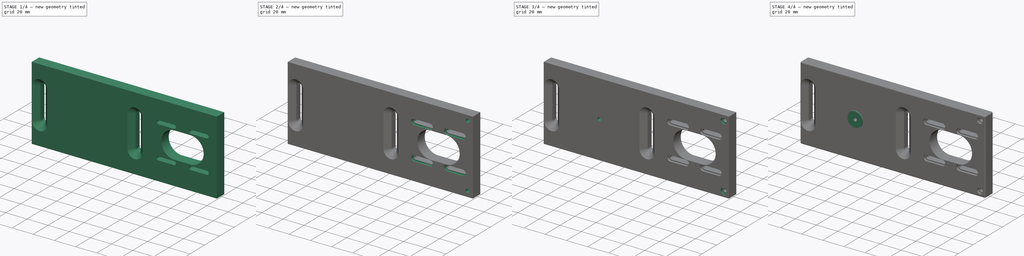
[diagram: build sequence overview — one tinted view per stage of 4, left to right]
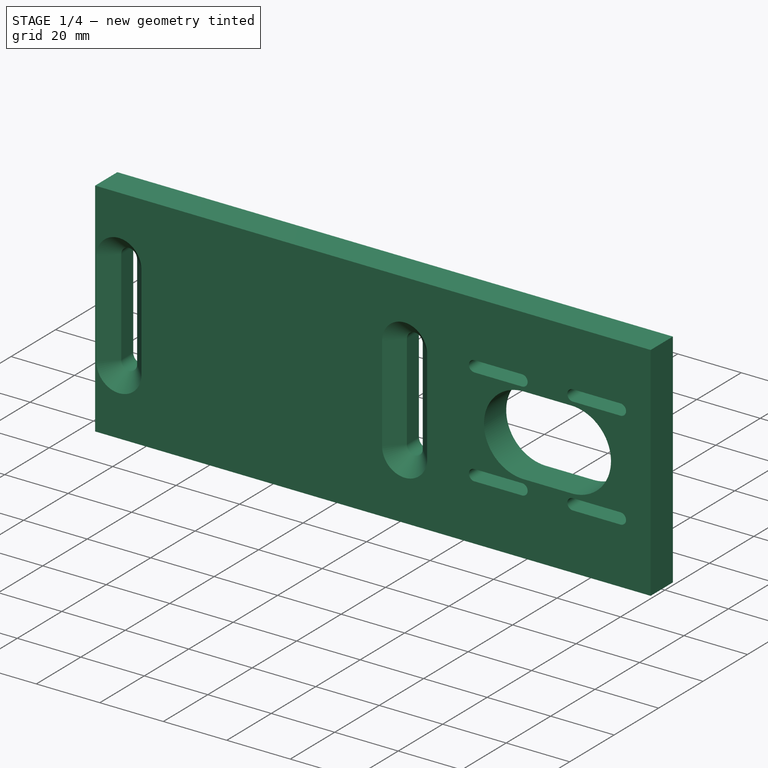
[diagram: stage 1 of 4 — iso view after this stage's code; geometry added in this stage tinted green]
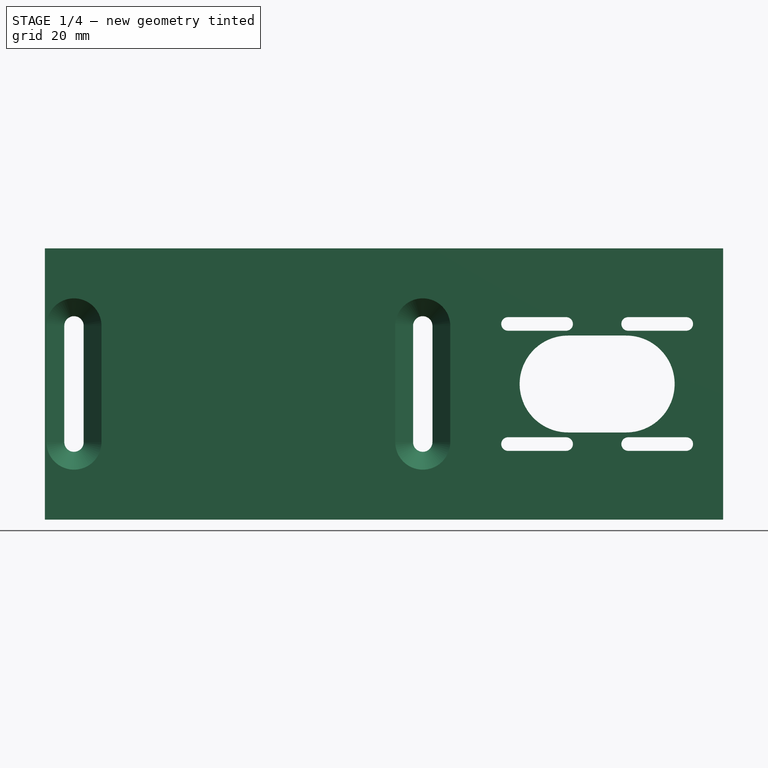
[diagram: stage 1 of 4 — front view after this stage's code; geometry added in this stage tinted green]
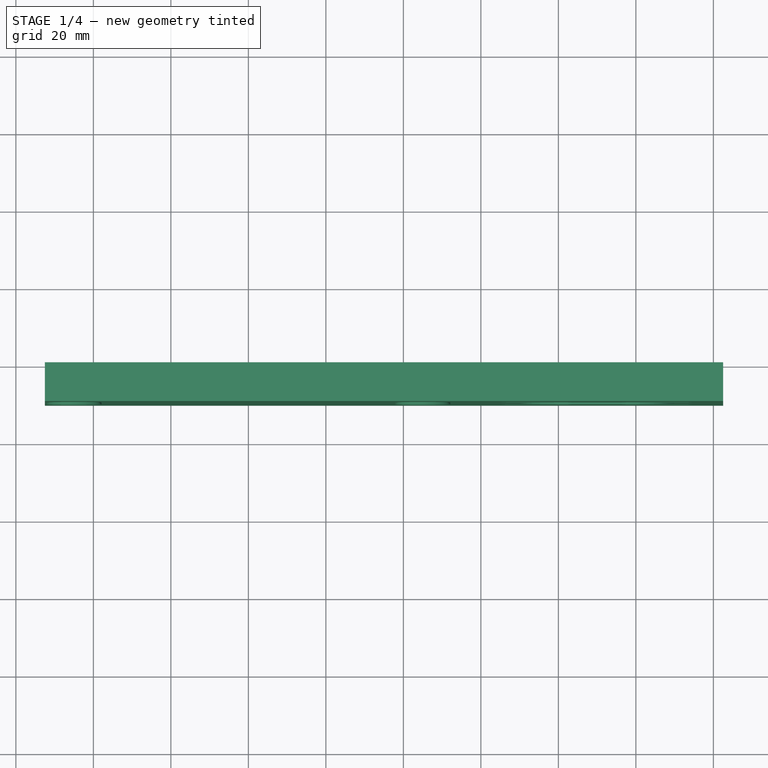
[diagram: stage 1 of 4 — top view after this stage's code; geometry added in this stage tinted green]
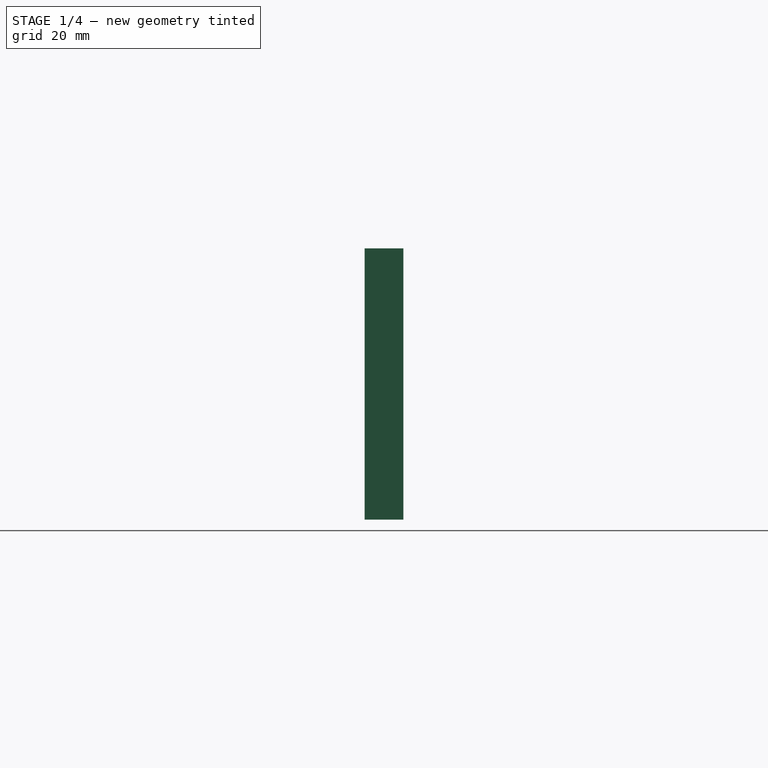
[diagram: stage 1 of 4 — right view after this stage's code; geometry added in this stage tinted green]
FCSTD DOCUMENT  (FreeCAD 0.19R24291 (Git))
Label: wall plate
License: All rights reserved
LicenseURL: http://en.wikipedia.org/wiki/All_rights_reserved
objects: Sketcher::SketchObject×7, PartDesign::Pocket×5, PartDesign::Pad×2, PartDesign::Chamfer×1, PartDesign::Plane×1, PartDesign::Fillet×1, PartDesign::Body×1
note: 27 computed .brp shape members not serialized (recipe doc carries the construction recipe); baked Part::Feature solids carry a one-line shape summary decoded from their .brp

FEATURE [Sketcher::SketchObject] Sketch
  FullyConstrained = false
  MapMode = 5
  Placement = pos=(0,0,0) rot=(1,0,0;1.5708rad)
  Support = -> [XZ_Plane]
  sketch-geometry (57):
    g0: LineSegment StartX=-52.5 StartY=35 StartZ=0 EndX=-52.5 EndY=-35 EndZ=0
    g1: LineSegment StartX=-52.5 StartY=-35 StartZ=0 EndX=52.5 EndY=-35 EndZ=0
    g2: LineSegment StartX=52.5 StartY=35 StartZ=0 EndX=-52.5 EndY=35 EndZ=0
    g3: Circle CenterX=0 CenterY=0 CenterZ=0 NormalX=0 NormalY=0 NormalZ=1 AngleXU=0 Radius=63.0971
    g4: ArcOfCircle CenterX=-45 CenterY=15 CenterZ=0 NormalX=0 NormalY=0 NormalZ=1 AngleXU=0 Radius=2.5 StartAngle=-1.6e-14 EndAngle=3.14159
    g5: ArcOfCircle CenterX=-45 CenterY=-15 CenterZ=0 NormalX=0 NormalY=0 NormalZ=1 AngleXU=0 Radius=2.5 StartAngle=3.14159 EndAngle=6.28319
    g6: LineSegment StartX=-47.5 StartY=15 StartZ=0 EndX=-47.5 EndY=-15 EndZ=0
    g7: LineSegment StartX=-42.5 StartY=15 StartZ=0 EndX=-42.5 EndY=-15 EndZ=0
    g8: LineSegment StartX=-45 StartY=15 StartZ=0 EndX=-45 EndY=0 EndZ=0
    g9: LineSegment StartX=-45 StartY=0 StartZ=0 EndX=-45 EndY=-15 EndZ=0
    g10: ArcOfCircle CenterX=45 CenterY=15 CenterZ=0 NormalX=0 NormalY=0 NormalZ=1 AngleXU=0 Radius=2.5 StartAngle=-1.972e-13 EndAngle=3.14159
    g11: ArcOfCircle CenterX=45 CenterY=-15 CenterZ=0 NormalX=0 NormalY=0 NormalZ=1 AngleXU=0 Radius=2.5 StartAngle=3.14159 EndAngle=6.28319
    g12: LineSegment StartX=47.5 StartY=15 StartZ=0 EndX=47.5 EndY=-15 EndZ=0
    g13: LineSegment StartX=42.5 StartY=15 StartZ=0 EndX=42.5 EndY=-15 EndZ=0
    g14: LineSegment StartX=45 StartY=15 StartZ=0 EndX=45 EndY=0 EndZ=0
    g15: LineSegment StartX=45 StartY=0 StartZ=0 EndX=45 EndY=-15 EndZ=0
    g16: LineSegment StartX=52.5 StartY=35 StartZ=0 EndX=122.5 EndY=35 EndZ=0
    g17: LineSegment StartX=122.5 StartY=35 StartZ=0 EndX=122.5 EndY=-35 EndZ=0
    g18: LineSegment StartX=122.5 StartY=-35 StartZ=0 EndX=52.5 EndY=-35 EndZ=0
    g19: LineSegment StartX=0 StartY=0 StartZ=0 EndX=90 EndY=0 EndZ=0
    g20: LineSegment StartX=105.5 StartY=15.5 StartZ=0 EndX=74.5 EndY=15.5 EndZ=0
    g21: LineSegment StartX=74.5 StartY=15.5 StartZ=0 EndX=74.5 EndY=-15.5 EndZ=0
    g22: LineSegment StartX=74.5 StartY=-15.5 StartZ=0 EndX=105.5 EndY=-15.5 EndZ=0
    g23: LineSegment StartX=105.5 StartY=-15.5 StartZ=0 EndX=105.5 EndY=15.5 EndZ=0
    g24: Circle CenterX=90 CenterY=0 CenterZ=0 NormalX=0 NormalY=0 NormalZ=1 AngleXU=0 Radius=21.9203
    g25: ArcOfCircle CenterX=82.5 CenterY=2e-16 CenterZ=0 NormalX=0 NormalY=0 NormalZ=1 AngleXU=0 Radius=12.5 StartAngle=1.5708 EndAngle=4.71239
    g26: ArcOfCircle CenterX=97.5 CenterY=0 CenterZ=0 NormalX=0 NormalY=0 NormalZ=1 AngleXU=0 Radius=12.5 StartAngle=4.71239 EndAngle=7.85398
    g27: LineSegment StartX=82.5 StartY=-12.5 StartZ=0 EndX=97.5 EndY=-12.5 EndZ=0
    g28: LineSegment StartX=82.5 StartY=12.5 StartZ=0 EndX=97.5 EndY=12.5 EndZ=0
    g29: LineSegment StartX=97.5 StartY=0 StartZ=0 EndX=90 EndY=0 EndZ=0
    g30: LineSegment StartX=90 StartY=0 StartZ=0 EndX=82.5 EndY=2e-16 EndZ=0
    g31: ArcOfCircle CenterX=67 CenterY=15.5 CenterZ=0 NormalX=0 NormalY=0 NormalZ=1 AngleXU=0 Radius=1.75 StartAngle=1.5708 EndAngle=4.71239
    g32: ArcOfCircle CenterX=82 CenterY=15.5 CenterZ=0 NormalX=0 NormalY=0 NormalZ=1 AngleXU=0 Radius=1.75 StartAngle=4.71239 EndAngle=7.85398
    g33: LineSegment StartX=67 StartY=13.75 StartZ=0 EndX=82 EndY=13.75 EndZ=0
    g34: LineSegment StartX=67 StartY=17.25 StartZ=0 EndX=82 EndY=17.25 EndZ=0
    g35: LineSegment StartX=67 StartY=15.5 StartZ=0 EndX=74.5 EndY=15.5 EndZ=0
    g36: LineSegment StartX=74.5 StartY=15.5 StartZ=0 EndX=82 EndY=15.5 EndZ=0
    g37: LineSegment StartX=90 StartY=0 StartZ=0 EndX=90 EndY=-4.86935 EndZ=0
    g38: ArcOfCircle CenterX=113 CenterY=15.5 CenterZ=0 NormalX=0 NormalY=0 NormalZ=1 AngleXU=0 Radius=1.75 StartAngle=4.71239 EndAngle=7.85398
    g39: ArcOfCircle CenterX=98 CenterY=15.5 CenterZ=0 NormalX=0 NormalY=0 NormalZ=1 AngleXU=0 Radius=1.75 StartAngle=1.5708 EndAngle=4.71239
    g40: LineSegment StartX=113 StartY=13.75 StartZ=0 EndX=98 EndY=13.75 EndZ=0
    g41: LineSegment StartX=113 StartY=17.25 StartZ=0 EndX=98 EndY=17.25 EndZ=0
    g42: LineSegment StartX=113 StartY=15.5 StartZ=0 EndX=105.5 EndY=15.5 EndZ=0
    g43: LineSegment StartX=105.5 StartY=15.5 StartZ=0 EndX=98 EndY=15.5 EndZ=0
    g44: LineSegment StartX=105.5 StartY=-15.5 StartZ=0 EndX=74.5 EndY=-15.5 EndZ=0
    g45: ArcOfCircle CenterX=67 CenterY=-15.5 CenterZ=0 NormalX=0 NormalY=0 NormalZ=1 AngleXU=0 Radius=1.75 StartAngle=1.5708 EndAngle=4.71239
    g46: ArcOfCircle CenterX=82 CenterY=-15.5 CenterZ=0 NormalX=0 NormalY=0 NormalZ=1 AngleXU=0 Radius=1.75 StartAngle=4.71239 EndAngle=7.85398
    g47: LineSegment StartX=67 StartY=-13.75 StartZ=0 EndX=82 EndY=-13.75 EndZ=0
    g48: LineSegment StartX=67 StartY=-17.25 StartZ=0 EndX=82 EndY=-17.25 EndZ=0
    g49: LineSegment StartX=67 StartY=-15.5 StartZ=0 EndX=74.5 EndY=-15.5 EndZ=0
    g50: LineSegment StartX=74.5 StartY=-15.5 StartZ=0 EndX=82 EndY=-15.5 EndZ=0
    g51: ArcOfCircle CenterX=113 CenterY=-15.5 CenterZ=0 NormalX=0 NormalY=0 NormalZ=1 AngleXU=0 Radius=1.75 StartAngle=4.71239 EndAngle=7.85398
    g52: ArcOfCircle CenterX=98 CenterY=-15.5 CenterZ=0 NormalX=0 NormalY=0 NormalZ=1 AngleXU=0 Radius=1.75 StartAngle=1.5708 EndAngle=4.71239
    g53: LineSegment StartX=113 StartY=-13.75 StartZ=0 EndX=98 EndY=-13.75 EndZ=0
    g54: LineSegment StartX=113 StartY=-17.25 StartZ=0 EndX=98 EndY=-17.25 EndZ=0
    g55: LineSegment StartX=113 StartY=-15.5 StartZ=0 EndX=105.5 EndY=-15.5 EndZ=0
    g56: LineSegment StartX=105.5 StartY=-15.5 StartZ=0 EndX=98 EndY=-15.5 EndZ=0
  constraints (129):
    c: Coincident(g0,g1)
    c: Coincident(g2,g0)
    c: PointOnObject(g0,g3)
    c: PointOnObject(g1,g3)
    c: PointOnObject(g2,g3)
    c: PointOnObject(g2,g3)
    c: Coincident(g3,g-1)
    c: Horizontal(g2)
    c: Equal(g2,g1)
    c: DistanceY(g1,g2) = 70
    c: DistanceX(g2,g2) = 105
    c: Tangent(g4,g7) = 1.5708
    c: Tangent(g4,g6) = -1.5708
    c: Tangent(g6,g5) = -1.5708
    c: Tangent(g7,g5) = 1.5708
    c: Vertical(g6)
    c: Equal(g4,g5)
    c: Coincident(g8,g4)
    c: PointOnObject(g8,g-1)
    c: Coincident(g9,g8)
    c: Coincident(g9,g5)
    c: Equal(g8,g9)
    c: Vertical(g8)
    c: DistanceY(g8,g8) = 15
    c: DistanceX(g4,g4) = 5
    c: DistanceX(g8,g-1) = 45
    c: Tangent(g10,g13) = -1.5708
    c: Tangent(g10,g12) = 1.5708
    c: Tangent(g12,g11) = 1.5708
    c: Tangent(g13,g11) = -1.5708
    c: Vertical(g12)
    c: Equal(g10,g11)
    c: Coincident(g14,g10)
    c: Coincident(g15,g14)
    c: Coincident(g15,g11)
    c: Equal(g14,g15)
    c: Vertical(g14)
    c: Coincident(g16,g17)
    c: Coincident(g17,g18)
    c: Horizontal(g16)
    c: Horizontal(g18)
    c: Vertical(g17)
    c: PointOnObject(g18,g1)
    c: Coincident(g19,g-1)
    c: PointOnObject(g19,g-1)
    c: DistanceX(g19,g19) = 90
    c: Vertical(g0)
    c: Coincident(g16,g2)
    c: Coincident(g20,g21)
    c: Equal(g20,g21)
    c: Equal(g20,g22)
    c: Equal(g20,g23)
    c: PointOnObject(g20,g24)
    c: PointOnObject(g21,g24)
    c: PointOnObject(g22,g24)
    c: PointOnObject(g23,g24)
    c: Coincident(g24,g19)
    c: Horizontal(g20)
    c: DistanceY(g23,g23) = 31
    c: Distance(g16,g2) = 70
    c: Tangent(g25,g28) = 1.5708
    c: Tangent(g25,g27) = -1.5708
    c: Tangent(g27,g26) = -1.5708
    c: Tangent(g28,g26) = 1.5708
    c: Horizontal(g27)
    c: Equal(g25,g26)
    c: Coincident(g29,g26)
    c: Coincident(g29,g19)
    c: Coincident(g30,g19)
    c: Coincident(g30,g25)
    c: Equal(g29,g30)
    c: Horizontal(g29)
    c: Distance(g26,g25) = 15
    c: Distance(g26,g26) = 25
    c: Tangent(g31,g34) = 1.5708
    c: Tangent(g31,g33) = -1.5708
    c: Tangent(g33,g32) = -1.5708
    c: Tangent(g34,g32) = 1.5708
    c: Horizontal(g33)
    c: Equal(g31,g32)
    c: Coincident(g35,g31)
    c: Coincident(g35,g20)
    c: Coincident(g36,g20)
    c: Coincident(g36,g32)
    c: Equal(g36,g35)
    c: Horizontal(g36)
    c: Distance(g32,g31) = 15
    c: Distance(g32,g32) = 3.5
    c: Coincident(g37,g19)
    c: Vertical(g37)
    c: Tangent(g38,g41) = -1.5708
    c: Tangent(g38,g40) = 1.5708
    c: Tangent(g40,g39) = 1.5708
    c: Tangent(g41,g39) = -1.5708
    c: Horizontal(g40)
    c: Equal(g38,g39)
    c: Coincident(g42,g38)
    c: Coincident(g43,g39)
    c: Equal(g43,g42)
    c: Horizontal(g43)
    c: Distance(g39,g38) = 15
    c: Distance(g39,g39) = 3.5
    c: Horizontal(g44)
    c: Tangent(g45,g48) = -1.5708
    c: Tangent(g45,g47) = 1.5708
    c: Tangent(g47,g46) = 1.5708
    c: Tangent(g48,g46) = -1.5708
    c: Horizontal(g47)
    c: Equal(g45,g46)
    c: Coincident(g49,g45)
    c: Coincident(g49,g44)
    c: Coincident(g50,g44)
    c: Coincident(g50,g46)
    c: Equal(g50,g49)
    c: Horizontal(g50)
    c: Distance(g46,g45) = 15
    c: Distance(g46,g46) = 3.5
    c: Tangent(g51,g54) = 1.5708
    c: Tangent(g51,g53) = -1.5708
    c: Tangent(g53,g52) = -1.5708
    c: Tangent(g54,g52) = 1.5708
    c: Horizontal(g53)
    c: Equal(g51,g52)
    c: Coincident(g55,g51)
    c: Coincident(g56,g52)
    c: Equal(g56,g55)
    c: Horizontal(g56)
    c: Distance(g52,g51) = 15
    c: Distance(g52,g52) = 3.5
FEATURE [PartDesign::Pad] Pad  label="main body"
  Direction = (1,1,1)
  Length = 10
  Length2 = 100
  Placement = pos=(0,0,0) rot=(1,0,0;1.5708rad)
  Profile = -> Sketch
  Type = 0
FEATURE [PartDesign::Chamfer] Chamfer
  Angle = 45
  Base = -> Pad [Edge42,Edge40,Edge34,Edge37,Edge54,Edge52,Edge46,Edge49]
  BaseFeature = -> Pad
  ChamferType = 2
  FlipDirection = false
  Placement = pos=(0,0,0) rot=(1,0,0;1.5708rad)
  Size = 4.6
  Size2 = 1
  SupportTransform = false
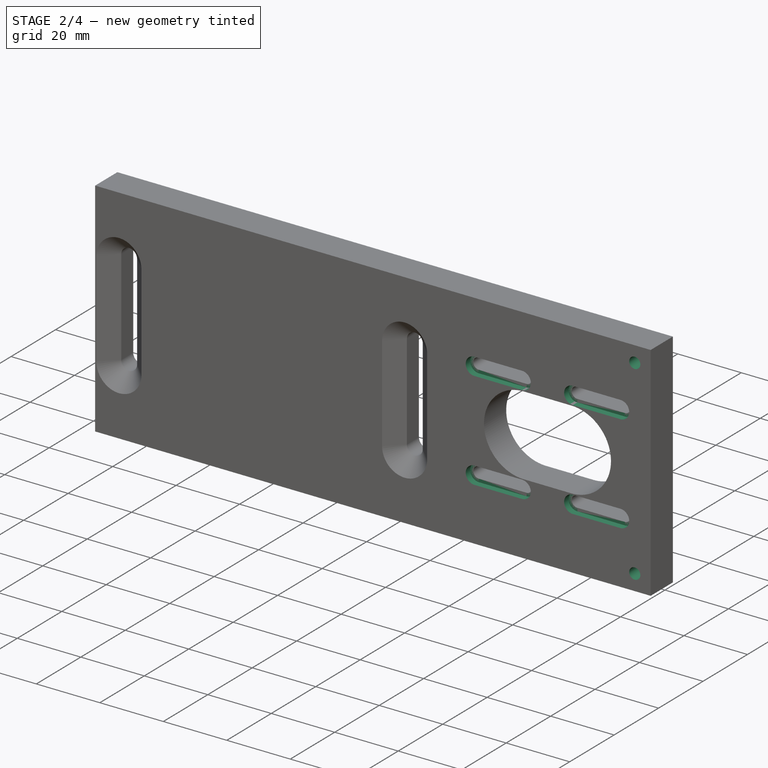
[diagram: stage 2 of 4 — iso view after this stage's code; geometry added in this stage tinted green]
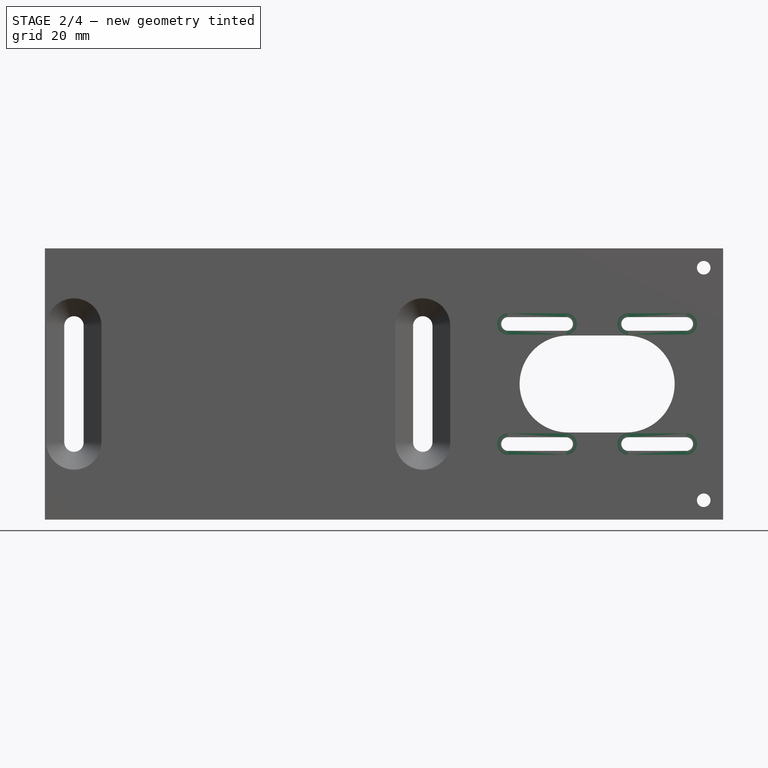
[diagram: stage 2 of 4 — front view after this stage's code; geometry added in this stage tinted green]
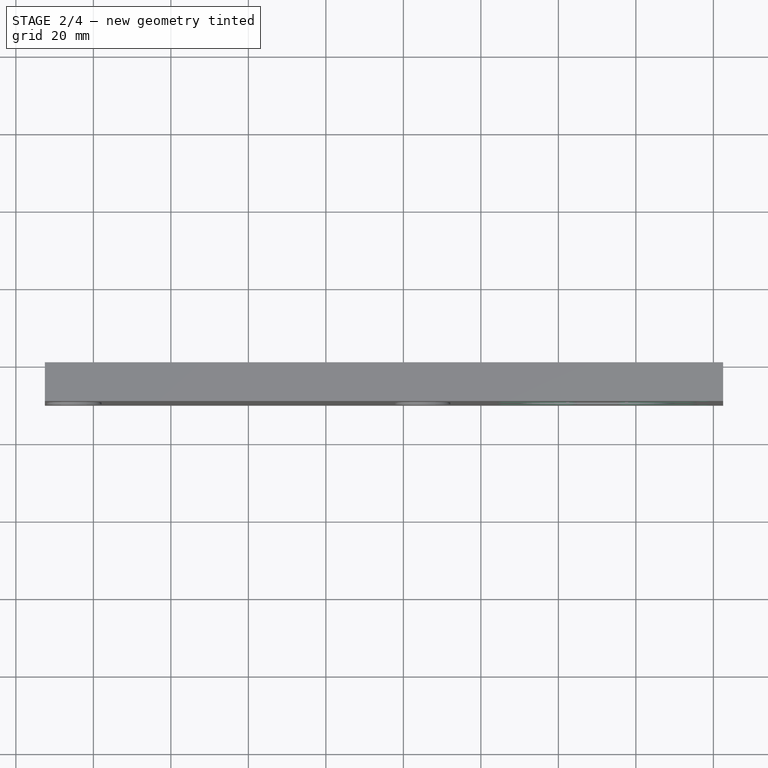
[diagram: stage 2 of 4 — top view after this stage's code; geometry added in this stage tinted green]
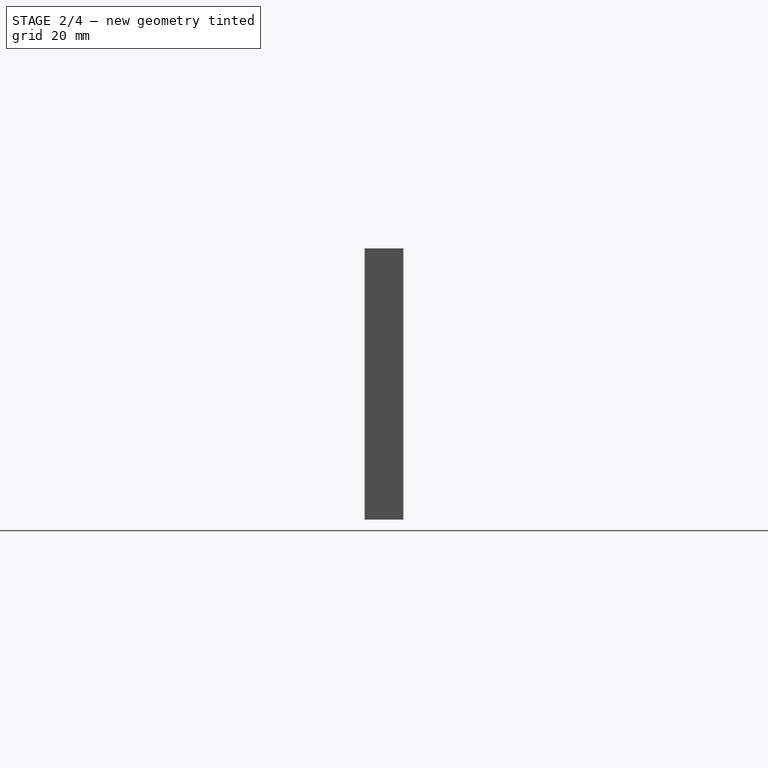
[diagram: stage 2 of 4 — right view after this stage's code; geometry added in this stage tinted green]
FEATURE [Sketcher::SketchObject] Sketch002
  ExternalGeometry = -> [Chamfer]
  FullyConstrained = false
  MapMode = 5
  Placement = pos=(0,-10,-2.2e-15) rot=(1,0,0;1.5708rad)
  Support = -> [Chamfer]
  sketch-geometry (20):
    g0: LineSegment StartX=82.5 StartY=2e-16 StartZ=0 EndX=97.5 EndY=0 EndZ=0
    g1: ArcOfCircle CenterX=67 CenterY=15.5 CenterZ=0 NormalX=0 NormalY=0 NormalZ=1 AngleXU=0 Radius=2.75 StartAngle=1.5708 EndAngle=4.71239
    g2: ArcOfCircle CenterX=82 CenterY=15.5 CenterZ=0 NormalX=0 NormalY=0 NormalZ=1 AngleXU=0 Radius=2.75 StartAngle=4.71239 EndAngle=7.85398
    g3: LineSegment StartX=67 StartY=12.75 StartZ=0 EndX=82 EndY=12.75 EndZ=0
    g4: LineSegment StartX=67 StartY=18.25 StartZ=0 EndX=82 EndY=18.25 EndZ=0
    g5: LineSegment StartX=90 StartY=1e-16 StartZ=0 EndX=90 EndY=-5 EndZ=0
    g6: LineSegment StartX=82.5 StartY=2e-16 StartZ=0 EndX=90 EndY=1e-16 EndZ=0
    g7: LineSegment StartX=97.5 StartY=0 StartZ=0 EndX=90 EndY=1e-16 EndZ=0
    g8: ArcOfCircle CenterX=67 CenterY=-15.5 CenterZ=0 NormalX=0 NormalY=0 NormalZ=1 AngleXU=0 Radius=2.75 StartAngle=1.5708 EndAngle=4.71239
    g9: ArcOfCircle CenterX=82 CenterY=-15.5 CenterZ=0 NormalX=0 NormalY=0 NormalZ=1 AngleXU=0 Radius=2.75 StartAngle=4.71239 EndAngle=7.85398
    g10: LineSegment StartX=67 StartY=-12.75 StartZ=0 EndX=82 EndY=-12.75 EndZ=0
    g11: LineSegment StartX=67 StartY=-18.25 StartZ=0 EndX=82 EndY=-18.25 EndZ=0
    g12: ArcOfCircle CenterX=113 CenterY=15.5 CenterZ=0 NormalX=0 NormalY=0 NormalZ=1 AngleXU=0 Radius=2.75 StartAngle=4.71239 EndAngle=7.85398
    g13: ArcOfCircle CenterX=98 CenterY=15.5 CenterZ=0 NormalX=0 NormalY=0 NormalZ=1 AngleXU=0 Radius=2.75 StartAngle=1.5708 EndAngle=4.71239
    g14: LineSegment StartX=113 StartY=12.75 StartZ=0 EndX=98 EndY=12.75 EndZ=0
    g15: LineSegment StartX=113 StartY=18.25 StartZ=0 EndX=98 EndY=18.25 EndZ=0
    g16: ArcOfCircle CenterX=113 CenterY=-15.5 CenterZ=0 NormalX=0 NormalY=0 NormalZ=1 AngleXU=0 Radius=2.75 StartAngle=4.71239 EndAngle=7.85398
    g17: ArcOfCircle CenterX=98 CenterY=-15.5 CenterZ=0 NormalX=0 NormalY=0 NormalZ=1 AngleXU=0 Radius=2.75 StartAngle=1.5708 EndAngle=4.71239
    g18: LineSegment StartX=113 StartY=-12.75 StartZ=0 EndX=98 EndY=-12.75 EndZ=0
    g19: LineSegment StartX=113 StartY=-18.25 StartZ=0 EndX=98 EndY=-18.25 EndZ=0
  constraints (32):
    c: Coincident(g0,g-5)
    c: Tangent(g1,g4) = 1.5708
    c: Tangent(g1,g3) = -1.5708
    c: Tangent(g3,g2) = -1.5708
    c: Tangent(g4,g2) = 1.5708
    c: Horizontal(g3)
    c: Coincident(g1,g-3)
    c: Coincident(g2,g-4)
    c: Distance(g2,g2) = 5.5
    c: Vertical(g5)
    c: Coincident(g6,g0)
    c: Coincident(g6,g5)
    c: Coincident(g7,g0)
    c: Coincident(g7,g5)
    c: Symmetric(g0,g0,g5)
    c: DistanceY(g5,g5) = 5
    c: Tangent(g8,g11) = -1.5708
    c: Tangent(g8,g10) = 1.5708
    c: Tangent(g10,g9) = 1.5708
    c: Tangent(g11,g9) = -1.5708
    c: Distance(g9,g9) = 5.5
    c: Tangent(g12,g15) = -1.5708
    c: Tangent(g12,g14) = 1.5708
    c: Tangent(g14,g13) = 1.5708
    c: Tangent(g15,g13) = -1.5708
    c: Horizontal(g14)
    c: Distance(g13,g13) = 5.5
    c: Tangent(g16,g19) = 1.5708
    c: Tangent(g16,g18) = -1.5708
    c: Tangent(g18,g17) = -1.5708
    c: Tangent(g19,g17) = 1.5708
    c: Distance(g17,g17) = 5.5
FEATURE [PartDesign::Pocket] Pocket  label="stepper slider counter sink"
  BaseFeature = -> Chamfer
  Length = 2
  Length2 = 100
  Placement = pos=(0,0,0) rot=(1,0,0;1.5708rad)
  Profile = -> Sketch002
  Type = 0
FEATURE [Sketcher::SketchObject] Sketch003
  ExternalGeometry = -> [Pocket]
  FullyConstrained = true
  MapMode = 5
  Placement = pos=(0,-10,-2.2e-15) rot=(1,0,0;1.5708rad)
  Support = -> [Pocket]
  sketch-geometry (10):
    g0: LineSegment StartX=122.5 StartY=35 StartZ=0 EndX=117.5 EndY=35 EndZ=0
    g1: LineSegment StartX=117.5 StartY=35 StartZ=0 EndX=117.5 EndY=30 EndZ=0
    g2: LineSegment StartX=117.5 StartY=30 StartZ=0 EndX=122.5 EndY=30 EndZ=0
    g3: LineSegment StartX=122.5 StartY=30 StartZ=0 EndX=122.5 EndY=35 EndZ=0
    g4: LineSegment StartX=122.5 StartY=-35 StartZ=0 EndX=117.5 EndY=-35 EndZ=0
    g5: LineSegment StartX=117.5 StartY=-35 StartZ=0 EndX=117.5 EndY=-30 EndZ=0
    g6: LineSegment StartX=117.5 StartY=-30 StartZ=0 EndX=122.5 EndY=-30 EndZ=0
    g7: LineSegment StartX=122.5 StartY=-30 StartZ=0 EndX=122.5 EndY=-35 EndZ=0
    g8: Circle CenterX=117.5 CenterY=30 CenterZ=0 NormalX=0 NormalY=0 NormalZ=1 AngleXU=0 Radius=1.75
    g9: Circle CenterX=117.5 CenterY=-30 CenterZ=0 NormalX=0 NormalY=0 NormalZ=1 AngleXU=0 Radius=1.75
  constraints (26):
    c: Coincident(g0,g1)
    c: Coincident(g1,g2)
    c: Coincident(g2,g3)
    c: Coincident(g3,g0)
    c: Horizontal(g0)
    c: Horizontal(g2)
    c: Vertical(g1)
    c: Vertical(g3)
    c: Coincident(g0,g-3)
    c: Coincident(g4,g5)
    c: Coincident(g5,g6)
    c: Coincident(g6,g7)
    c: Coincident(g7,g4)
    c: Horizontal(g4)
    c: Horizontal(g6)
    c: Vertical(g5)
    c: Vertical(g7)
    c: Coincident(g4,g-4)
    c: Equal(g0,g1)
    c: Equal(g4,g7)
    c: DistanceY(g7,g7) = 5
    c: DistanceY(g3,g3) = 5
    c: Coincident(g8,g1)
    c: Diameter(g8) = 3.5
    c: Coincident(g9,g5)
    c: Diameter(g9) = 3.5
FEATURE [PartDesign::Pocket] Pocket001  label="case holes"
  BaseFeature = -> Pocket
  Length = 5
  Length2 = 100
  Placement = pos=(0,0,0) rot=(1,0,0;1.5708rad)
  Profile = -> Sketch003
  Type = 1
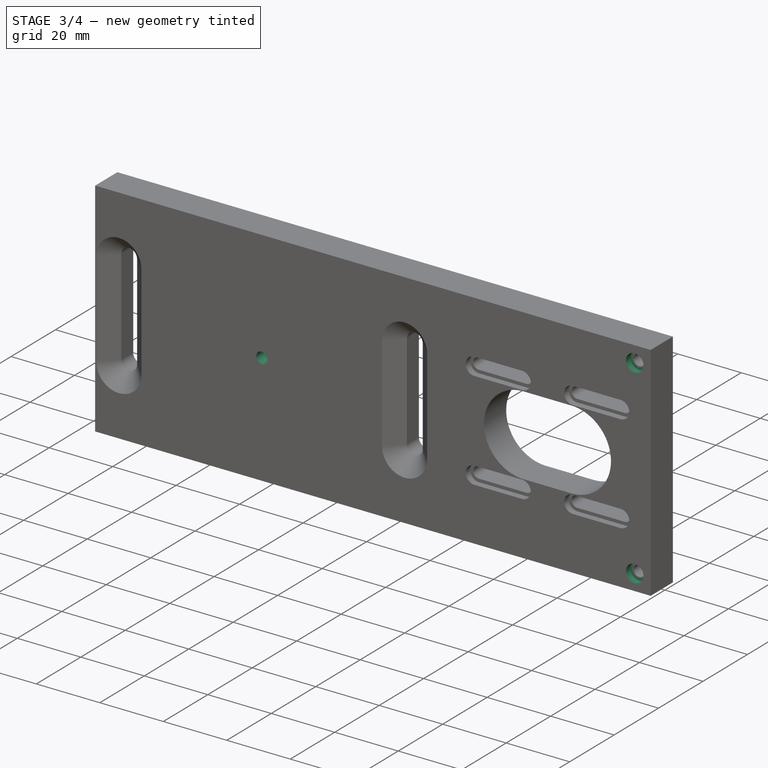
[diagram: stage 3 of 4 — iso view after this stage's code; geometry added in this stage tinted green]
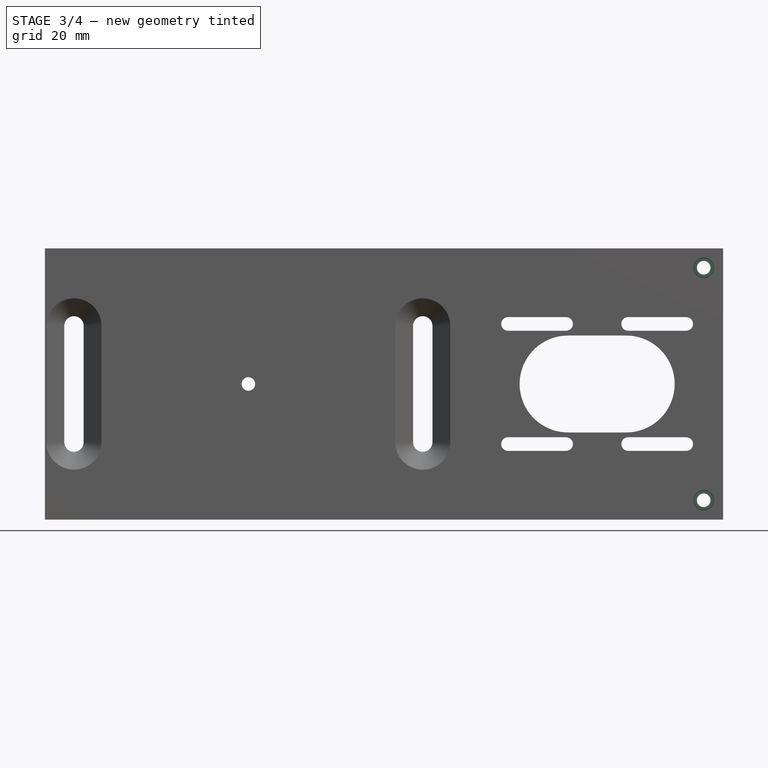
[diagram: stage 3 of 4 — front view after this stage's code; geometry added in this stage tinted green]
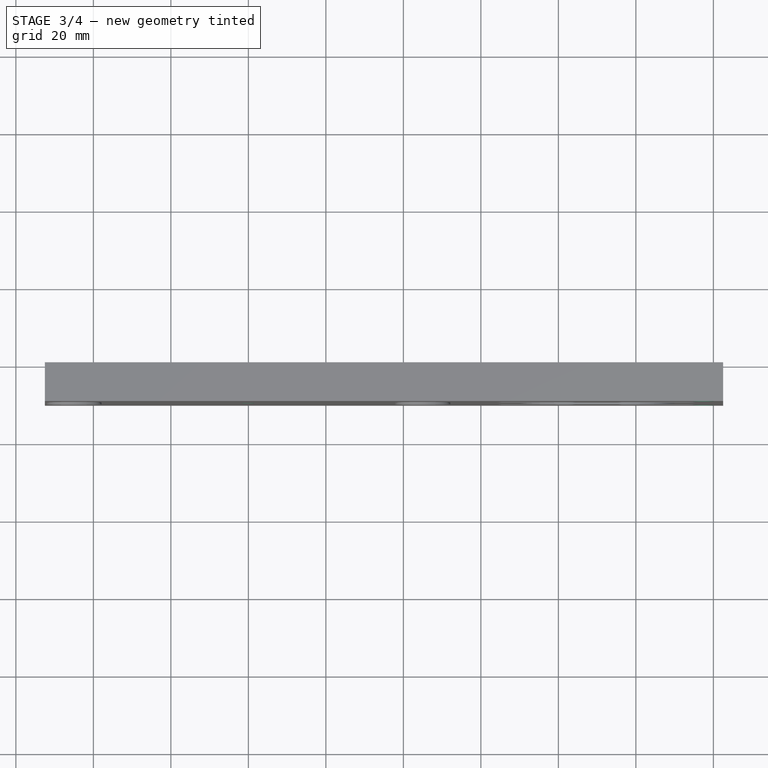
[diagram: stage 3 of 4 — top view after this stage's code; geometry added in this stage tinted green]
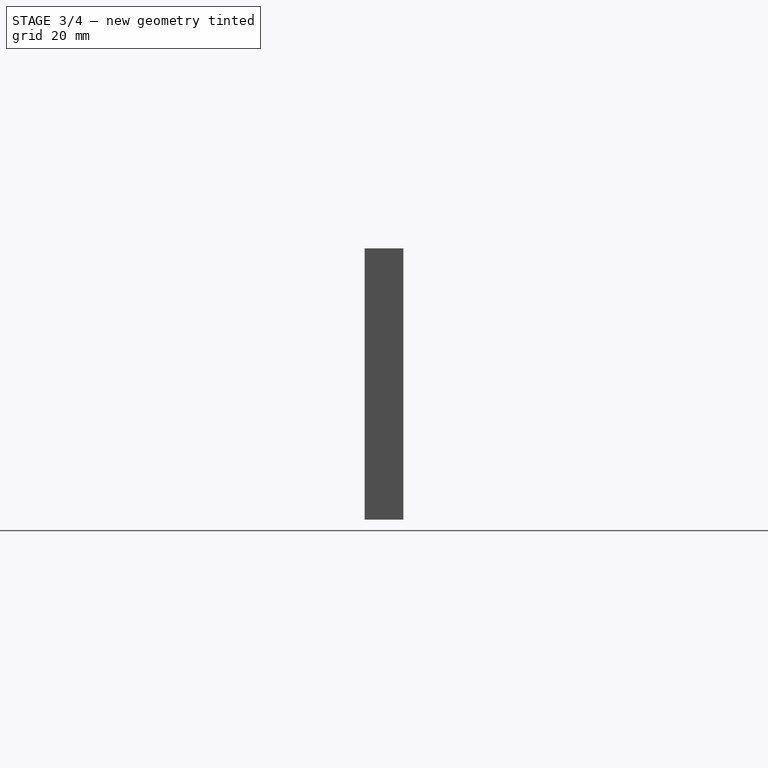
[diagram: stage 3 of 4 — right view after this stage's code; geometry added in this stage tinted green]
FEATURE [Sketcher::SketchObject] Sketch004
  ExternalGeometry = -> [Pocket001]
  FullyConstrained = true
  MapMode = 5
  Placement = pos=(0,-10,-2.2e-15) rot=(1,0,0;1.5708rad)
  Support = -> [Pocket001]
  sketch-geometry (6):
    g0: Circle CenterX=117.5 CenterY=30 CenterZ=0 NormalX=0 NormalY=0 NormalZ=1 AngleXU=0 Radius=2.75
    g1: Circle CenterX=117.5 CenterY=-30 CenterZ=0 NormalX=0 NormalY=0 NormalZ=1 AngleXU=0 Radius=2.75
    g2: LineSegment StartX=122.5 StartY=35 StartZ=0 EndX=117.5 EndY=35 EndZ=0
    g3: LineSegment StartX=117.5 StartY=35 StartZ=0 EndX=117.5 EndY=30 EndZ=0
    g4: LineSegment StartX=117.5 StartY=30 StartZ=0 EndX=122.5 EndY=30 EndZ=0
    g5: LineSegment StartX=122.5 StartY=30 StartZ=0 EndX=122.5 EndY=35 EndZ=0
  constraints (15):
    c: Diameter(g0) = 5.5
    c: Coincident(g1,g-3)
    c: Diameter(g1) = 5.5
    c: Coincident(g2,g3)
    c: Coincident(g3,g4)
    c: Coincident(g4,g5)
    c: Coincident(g5,g2)
    c: Horizontal(g2)
    c: Horizontal(g4)
    c: Vertical(g3)
    c: Vertical(g5)
    c: Coincident(g2,g-4)
    c: Coincident(g3,g0)
    c: Equal(g2,g5)
    c: DistanceY(g5,g5) = 5
FEATURE [PartDesign::Pocket] Pocket002  label="case holes counter sink"
  BaseFeature = -> Pocket001
  Length = 2
  Length2 = 100
  Placement = pos=(0,0,0) rot=(1,0,0;1.5708rad)
  Profile = -> Sketch004
  Type = 0
FEATURE [PartDesign::Plane] DatumPlane
  AttachmentOffset = pos=(0,0,5) rot=(0,0,1;0rad)
  Length = 197.136
  MapMode = 5
  Placement = pos=(0,-5,-1.1e-15) rot=(1,0,0;1.5708rad)
  ResizeMode = 0
  Support = -> [XZ_Plane]
  Width = 92.136
FEATURE [Sketcher::SketchObject] Sketch005  label="captive"
  FullyConstrained = true
  MapMode = 5
  Placement = pos=(0,-5,-1.1e-15) rot=(1,0,0;1.5708rad)
  Support = -> [DatumPlane]
  sketch-geometry (7):
    g0: LineSegment StartX=3.57957 StartY=0 StartZ=0 EndX=1.78979 EndY=3.1 EndZ=0
    g1: LineSegment StartX=1.78979 StartY=3.1 StartZ=0 EndX=-1.78979 EndY=3.1 EndZ=0
    g2: LineSegment StartX=-1.78979 StartY=3.1 StartZ=0 EndX=-3.57957 EndY=0 EndZ=0
    g3: LineSegment StartX=-3.57957 StartY=0 StartZ=0 EndX=-1.78979 EndY=-3.1 EndZ=0
    g4: LineSegment StartX=-1.78979 StartY=-3.1 StartZ=0 EndX=1.78979 EndY=-3.1 EndZ=0
    g5: LineSegment StartX=1.78979 StartY=-3.1 StartZ=0 EndX=3.57957 EndY=0 EndZ=0
    g6: Circle CenterX=0 CenterY=0 CenterZ=0 NormalX=0 NormalY=0 NormalZ=1 AngleXU=0 Radius=3.57957
  constraints (16):
    c: Coincident(g0,g1)
    c: Coincident(g1,g2)
    c: Coincident(g2,g3)
    c: Coincident(g3,g4)
    c: Coincident(g4,g5)
    c: Coincident(g5,g0)
    c: Equal(g0, g1-g5) x5
    c: PointOnObject(g0,g6)
    c: PointOnObject(g1,g6)
    c: PointOnObject(g2,g6)
    c: PointOnObject(g3,g6)
    c: PointOnObject(g4,g6)
    c: PointOnObject(g5,g6)
    c: Coincident(g6,g-1)
    c: Horizontal(g1)
    c: DistanceY(g4,g0) = 6.2
FEATURE [PartDesign::Pocket] Pocket003  label="captive nut"
  BaseFeature = -> Pocket002
  Length = 3
  Length2 = 100
  Midplane = true
  Placement = pos=(0,0,0) rot=(1,0,0;1.5708rad)
  Profile = -> Sketch005
  Type = 0
FEATURE [Sketcher::SketchObject] Sketch006
  FullyConstrained = true
  MapMode = 5
  Placement = pos=(0,-10,-2.2e-15) rot=(1,0,0;1.5708rad)
  Support = -> [Pocket003]
  sketch-geometry (1):
    g0: Circle CenterX=0 CenterY=0 CenterZ=0 NormalX=0 NormalY=0 NormalZ=1 AngleXU=0 Radius=1.75
  constraints (2):
    c: Coincident(g0,g-1)
    c: Diameter(g0) = 3.5
FEATURE [PartDesign::Pocket] Pocket004  label="captive bolt"
  BaseFeature = -> Pocket003
  Length = 5
  Length2 = 100
  Placement = pos=(0,0,0) rot=(1,0,0;1.5708rad)
  Profile = -> Sketch006
  Type = 1
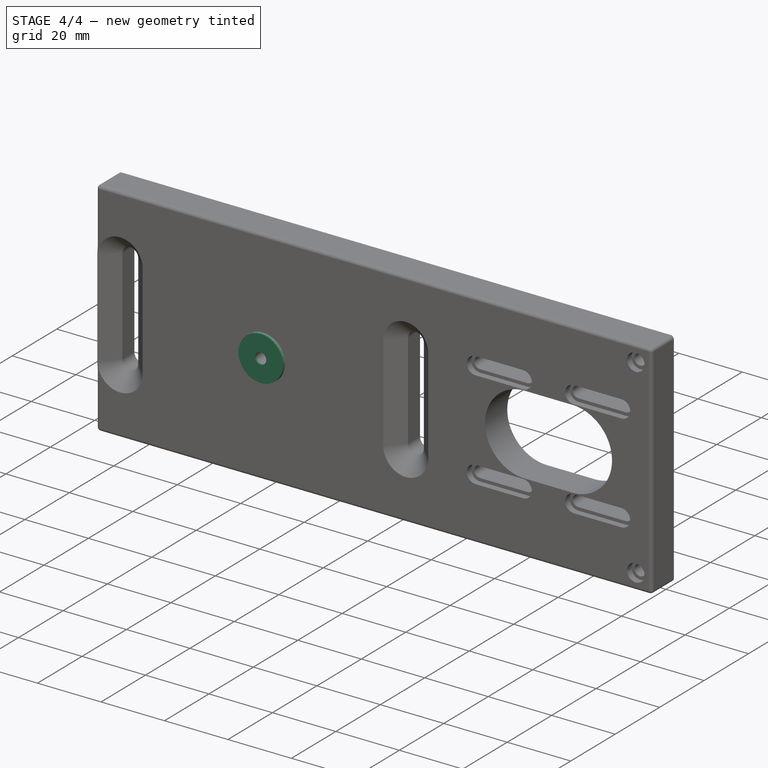
[diagram: stage 4 of 4 — iso view after this stage's code; geometry added in this stage tinted green]
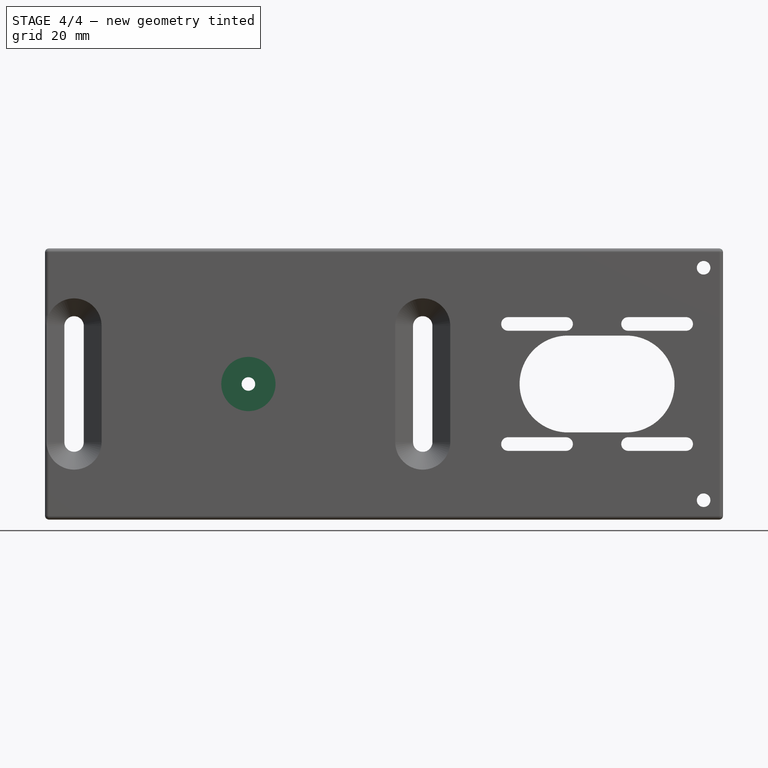
[diagram: stage 4 of 4 — front view after this stage's code; geometry added in this stage tinted green]
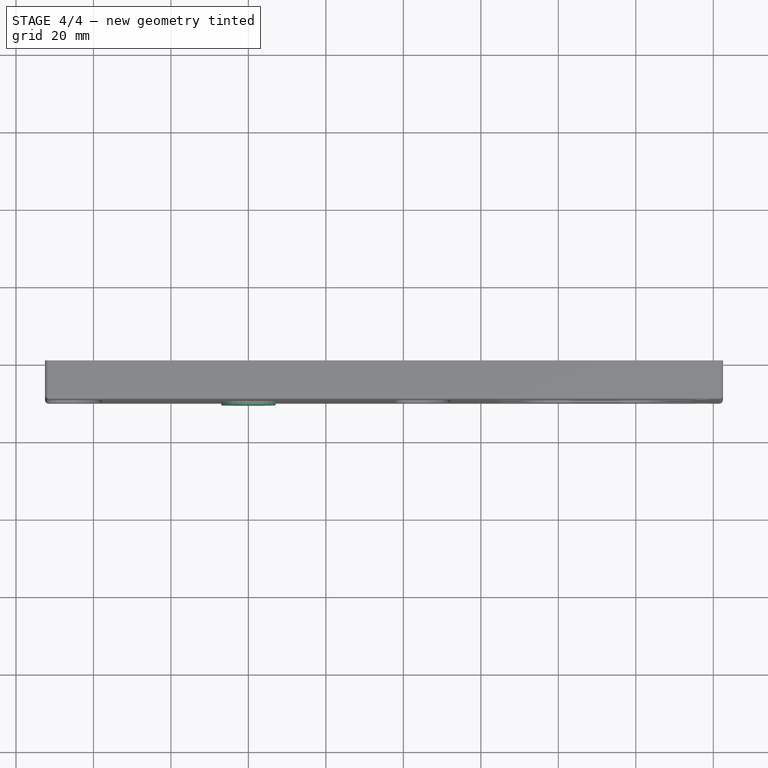
[diagram: stage 4 of 4 — top view after this stage's code; geometry added in this stage tinted green]
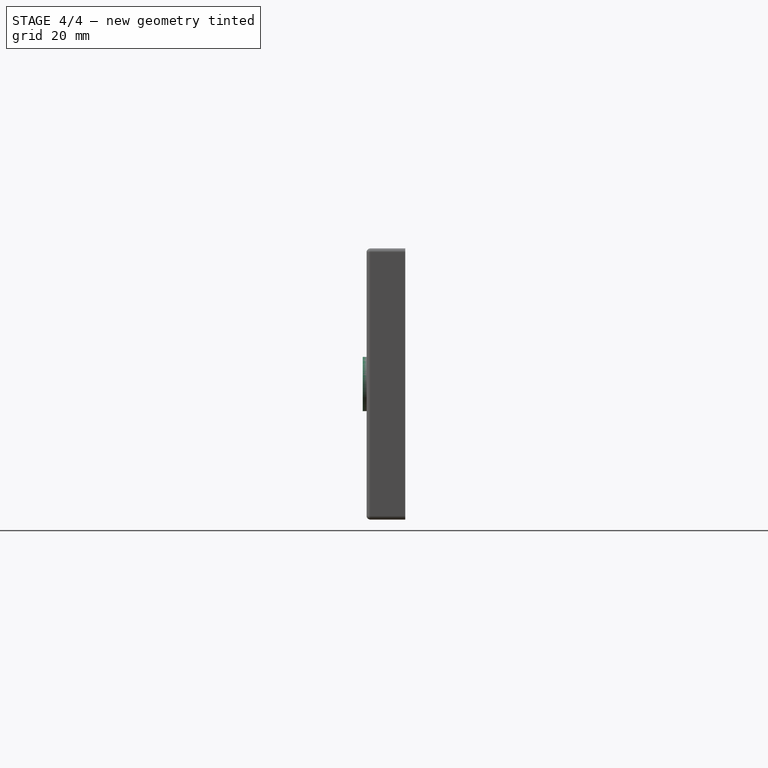
[diagram: stage 4 of 4 — right view after this stage's code; geometry added in this stage tinted green]
FEATURE [Sketcher::SketchObject] Sketch007
  ExternalGeometry = -> [Pocket004]
  FullyConstrained = true
  MapMode = 5
  Placement = pos=(0,-10,-2.2e-15) rot=(1,0,0;1.5708rad)
  Support = -> [Pocket004]
  sketch-geometry (2):
    g0: Circle CenterX=0 CenterY=0 CenterZ=0 NormalX=0 NormalY=0 NormalZ=1 AngleXU=0 Radius=7
    g1: Circle CenterX=0 CenterY=0 CenterZ=0 NormalX=0 NormalY=0 NormalZ=1 AngleXU=0 Radius=1.75
  constraints (4):
    c: Coincident(g0,g-1)
    c: Coincident(g1,g0)
    c: Tangent(g1,g-3)
    c: Diameter(g0) = 14
FEATURE [PartDesign::Pad] Pad001  label="bearing rest"
  BaseFeature = -> Pocket004
  Direction = (1,1,1)
  Length = 1
  Length2 = 100
  Placement = pos=(0,0,0) rot=(1,0,0;1.5708rad)
  Profile = -> Sketch007
  Type = 0
FEATURE [PartDesign::Fillet] Fillet
  Base = -> Pad001 [Edge56,Edge89,Edge91,Edge58,Edge54,Edge57,Edge90,Edge55,Edge88,Edge53]
  BaseFeature = -> Pad001
  Placement = pos=(0,0,0) rot=(1,0,0;1.5708rad)
  Radius = 1
  SupportTransform = false
FEATURE [PartDesign::Body] Body
  Group = -> [Sketch,Pad,Chamfer,Sketch002,Pocket,Sketch003,Pocket001,Sketch004,Pocket002,DatumPlane,Sketch005,Pocket003,Sketch006,Pocket004,Sketch007,Pad001,Fillet]
  Origin = -> Origin
  Tip = -> Fillet
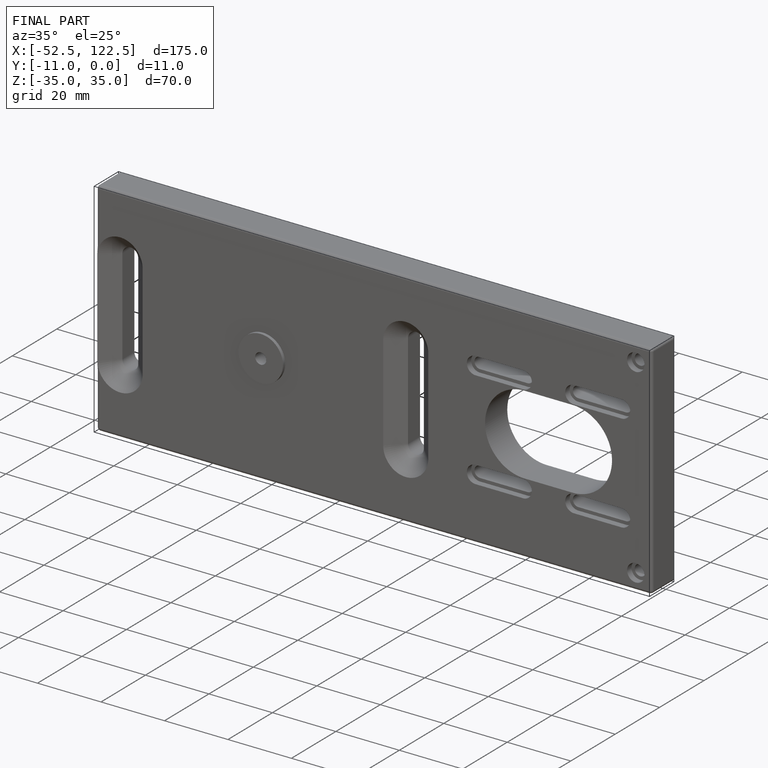
[diagram: finished part — iso view with bounding-box wireframe]
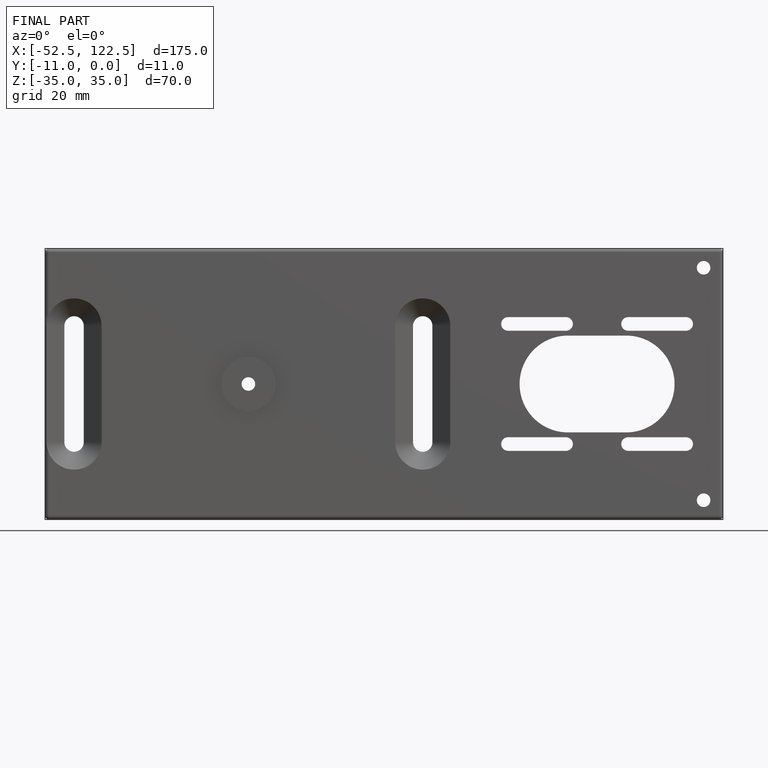
[diagram: finished part — front view with bounding-box wireframe]
